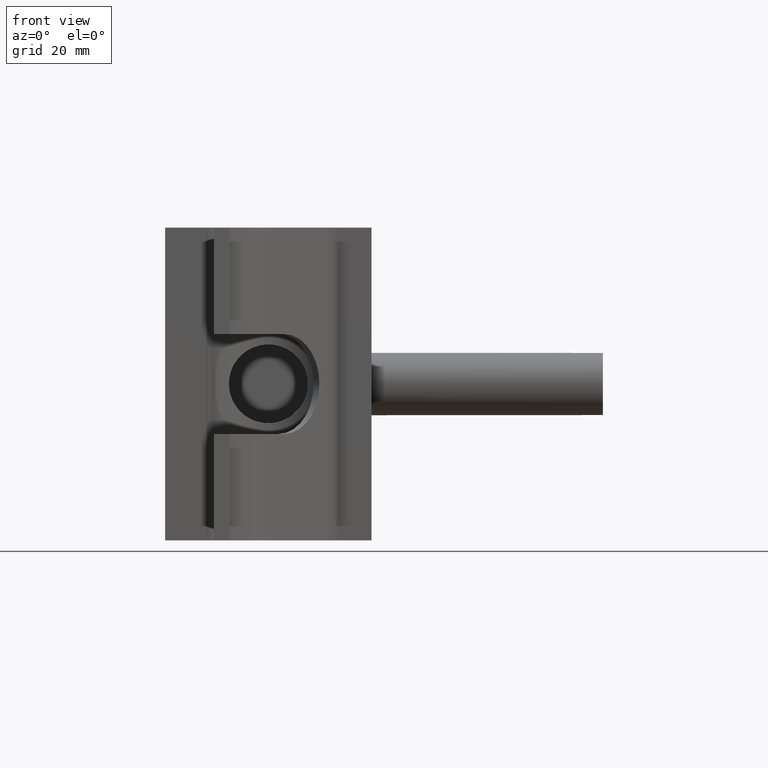
[diagram: clean part render]
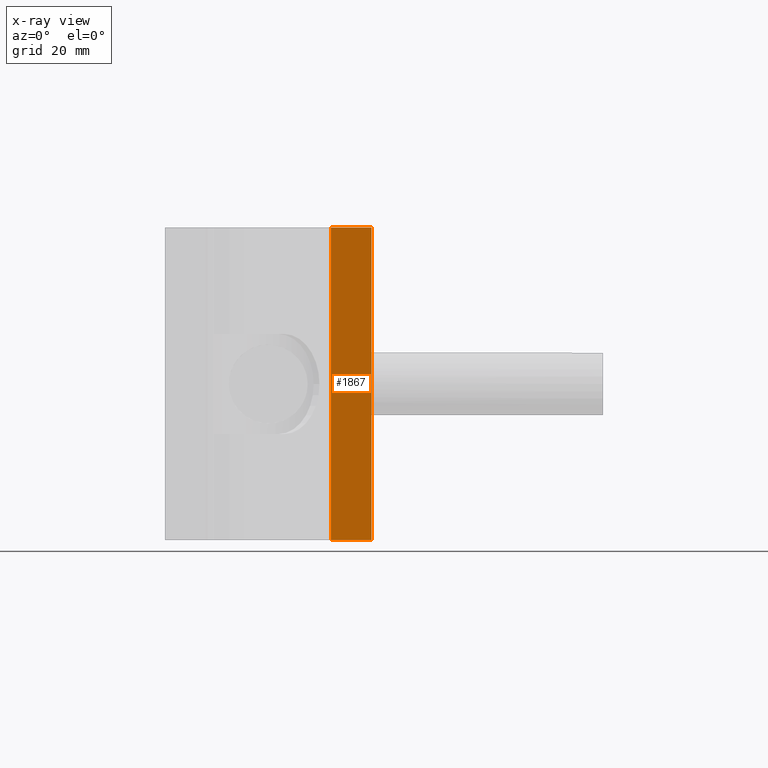
[diagram: x-ray — body ghosted, one internal face saturated and labeled with its STEP entity id]
A machine part, front view, then the same camera in x-ray: the body is ghosted and one INTERNAL B-rep face — a face not visible from any outside direction — is saturated and labeled: STEP entity #1867.
In plain terms, the highlighted planar face has unit normal (-0, 1, 0).
Its self-contained STEP definition (entity closure, byte-faithful):
#172=LINE('',#3611,#317);
#173=LINE('',#3613,#318);
#174=LINE('',#3615,#319);
#175=LINE('',#3616,#320);
#317=VECTOR('',#2584,13.0000625000977);
#318=VECTOR('',#2585,100.);
#319=VECTOR('',#2586,13.0000625000977);
#320=VECTOR('',#2587,100.);
#513=FACE_OUTER_BOUND('',#647,.T.);
#647=EDGE_LOOP('',(#1642,#1643,#1644,#1645));
#902=VERTEX_POINT('',#3609);
#903=VERTEX_POINT('',#3610);
#904=VERTEX_POINT('',#3612);
#905=VERTEX_POINT('',#3614);
#1156=EDGE_CURVE('',#902,#903,#172,.T.);
#1157=EDGE_CURVE('',#904,#902,#173,.T.);
#1158=EDGE_CURVE('',#905,#904,#174,.T.);
#1159=EDGE_CURVE('',#905,#903,#175,.T.);
#1642=ORIENTED_EDGE('',*,*,#1156,.F.);
#1643=ORIENTED_EDGE('',*,*,#1157,.F.);
#1644=ORIENTED_EDGE('',*,*,#1158,.F.);
#1645=ORIENTED_EDGE('',*,*,#1159,.T.);
#1758=PLANE('',#2065);
#1867=ADVANCED_FACE('',(#513),#1758,.T.);
#2065=AXIS2_PLACEMENT_3D('',#3608,#2582,#2583);
#2582=DIRECTION('center_axis',(-2.00159438767749E-18,1.,0.));
#2583=DIRECTION('ref_axis',(1.,2.08166817117217E-18,0.));
#2584=DIRECTION('',(1.,2.00159438767749E-18,0.));
#2585=DIRECTION('',(0.,0.,-1.));
#2586=DIRECTION('',(-1.,-2.00159438767749E-18,0.));
#2587=DIRECTION('',(0.,0.,-1.));
#3608=CARTESIAN_POINT('Origin',(19.9999374999023,0.0500000000000078,50.));
#3609=CARTESIAN_POINT('',(19.9999374999023,0.0500000000000078,-50.));
#3610=CARTESIAN_POINT('',(33.,0.0500000000000078,-50.));
#3611=CARTESIAN_POINT('',(13.8999874999805,0.0500000000000078,-50.));
#3612=CARTESIAN_POINT('',(19.9999374999023,0.0500000000000078,50.));
#3613=CARTESIAN_POINT('',(19.9999374999023,0.0500000000000078,50.));
#3614=CARTESIAN_POINT('',(33.,0.0500000000000078,50.));
#3615=CARTESIAN_POINT('',(33.,0.0500000000000078,50.));
#3616=CARTESIAN_POINT('',(33.,0.0500000000000078,50.));